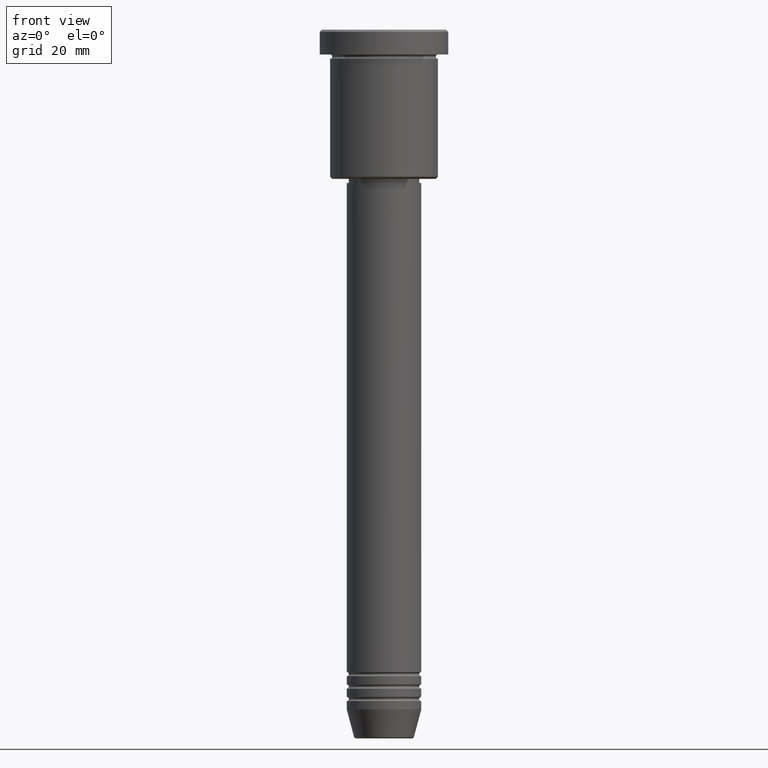
[diagram: clean part render]
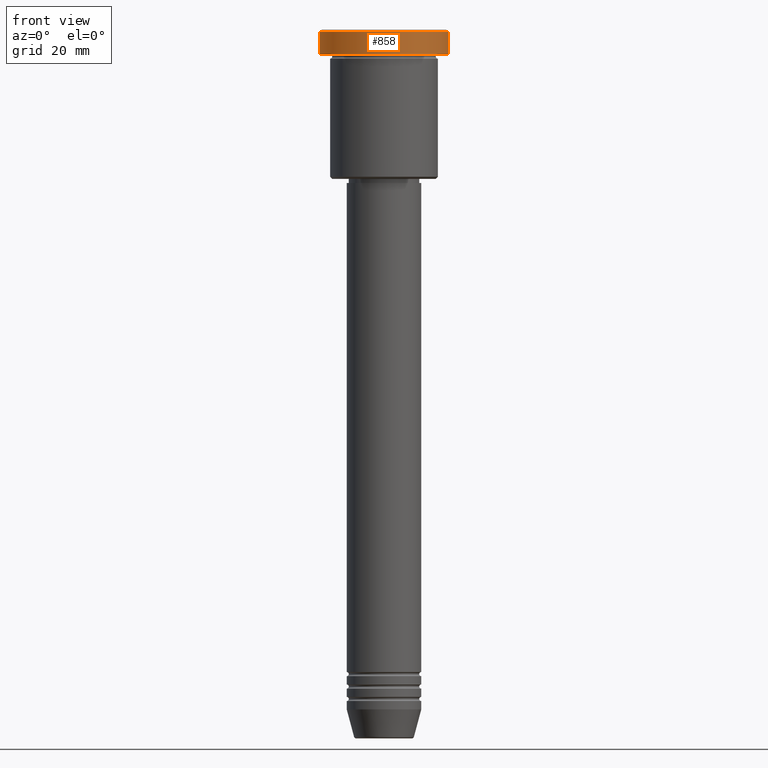
[diagram: same view with one face highlighted and labeled with its STEP entity id]
A machine part, front view. The second image highlights one B-rep face of the part: STEP entity #858.
In plain terms, the highlighted cylindrical surface (partial cylindrical patch) has radius 15.5 mm, axis along (-0, -0, 1).
Its self-contained STEP definition (entity closure, byte-faithful):
#80 = EDGE_CURVE ( 'NONE', #1049, #184, #663, .T. ) ;
#92 = DIRECTION ( 'NONE',  ( 1.000000000000000000, 0.000000000000000000, 0.000000000000000000 ) ) ;
#115 = VECTOR ( 'NONE', #655, 1000.000000000000000 ) ;
#182 = VERTEX_POINT ( 'NONE', #896 ) ;
#184 = VERTEX_POINT ( 'NONE', #1010 ) ;
#192 = AXIS2_PLACEMENT_3D ( 'NONE', #556, #822, #92 ) ;
#264 = DIRECTION ( 'NONE',  ( -0.000000000000000000, -0.000000000000000000, 1.000000000000000000 ) ) ;
#287 = CARTESIAN_POINT ( 'NONE',  ( 0.000000000000000000, 0.000000000000000000, 0.000000000000000000 ) ) ;
#290 = LINE ( 'NONE', #398, #115 ) ;
#304 = CARTESIAN_POINT ( 'NONE',  ( 0.000000000000000000, 0.000000000000000000, -5.999999999999995559 ) ) ;
#317 = EDGE_CURVE ( 'NONE', #182, #1049, #290, .T. ) ;
#357 = CARTESIAN_POINT ( 'NONE',  ( -15.50000000000000000, 1.898202538678397557E-15, 0.000000000000000000 ) ) ;
#387 = CIRCLE ( 'NONE', #1170, 15.50000000000000000 ) ;
#391 = CYLINDRICAL_SURFACE ( 'NONE', #674, 15.50000000000000000 ) ;
#393 = ORIENTED_EDGE ( 'NONE', *, *, #317, .T. ) ;
#398 = CARTESIAN_POINT ( 'NONE',  ( 15.50000000000000000, 0.000000000000000000, 0.000000000000000000 ) ) ;
#473 = CARTESIAN_POINT ( 'NONE',  ( -15.50000000000000000, 1.898202538678397557E-15, -5.999999999999995559 ) ) ;
#556 = CARTESIAN_POINT ( 'NONE',  ( 0.000000000000000000, 0.000000000000000000, -0.5000000000000125455 ) ) ;
#570 = DIRECTION ( 'NONE',  ( 1.000000000000000000, 0.000000000000000000, 0.000000000000000000 ) ) ;
#631 = CARTESIAN_POINT ( 'NONE',  ( 15.50000000000000000, 0.000000000000000000, -0.5000000000000125455 ) ) ;
#647 = DIRECTION ( 'NONE',  ( -0.000000000000000000, -0.000000000000000000, 1.000000000000000000 ) ) ;
#655 = DIRECTION ( 'NONE',  ( -0.000000000000000000, -0.000000000000000000, 1.000000000000000000 ) ) ;
#663 = CIRCLE ( 'NONE', #192, 15.50000000000000000 ) ;
#674 = AXIS2_PLACEMENT_3D ( 'NONE', #287, #647, #570 ) ;
#748 = EDGE_CURVE ( 'NONE', #792, #182, #387, .T. ) ;
#792 = VERTEX_POINT ( 'NONE', #473 ) ;
#822 = DIRECTION ( 'NONE',  ( 0.000000000000000000, 0.000000000000000000, -1.000000000000000000 ) ) ;
#853 = VECTOR ( 'NONE', #264, 1000.000000000000000 ) ;
#858 = ADVANCED_FACE ( 'NONE', ( #1100 ), #391, .T. ) ;
#865 = EDGE_LOOP ( 'NONE', ( #1172, #984, #393, #999 ) ) ;
#896 = CARTESIAN_POINT ( 'NONE',  ( 15.50000000000000000, 0.000000000000000000, -5.999999999999995559 ) ) ;
#984 = ORIENTED_EDGE ( 'NONE', *, *, #748, .T. ) ;
#999 = ORIENTED_EDGE ( 'NONE', *, *, #80, .T. ) ;
#1010 = CARTESIAN_POINT ( 'NONE',  ( -15.50000000000000000, 1.898202538678397557E-15, -0.5000000000000125455 ) ) ;
#1049 = VERTEX_POINT ( 'NONE', #631 ) ;
#1078 = LINE ( 'NONE', #357, #853 ) ;
#1093 = DIRECTION ( 'NONE',  ( 1.000000000000000000, 0.000000000000000000, 0.000000000000000000 ) ) ;
#1100 = FACE_OUTER_BOUND ( 'NONE', #865, .T. ) ;
#1113 = DIRECTION ( 'NONE',  ( -0.000000000000000000, -0.000000000000000000, 1.000000000000000000 ) ) ;
#1120 = EDGE_CURVE ( 'NONE', #792, #184, #1078, .T. ) ;
#1170 = AXIS2_PLACEMENT_3D ( 'NONE', #304, #1113, #1093 ) ;
#1172 = ORIENTED_EDGE ( 'NONE', *, *, #1120, .F. ) ;